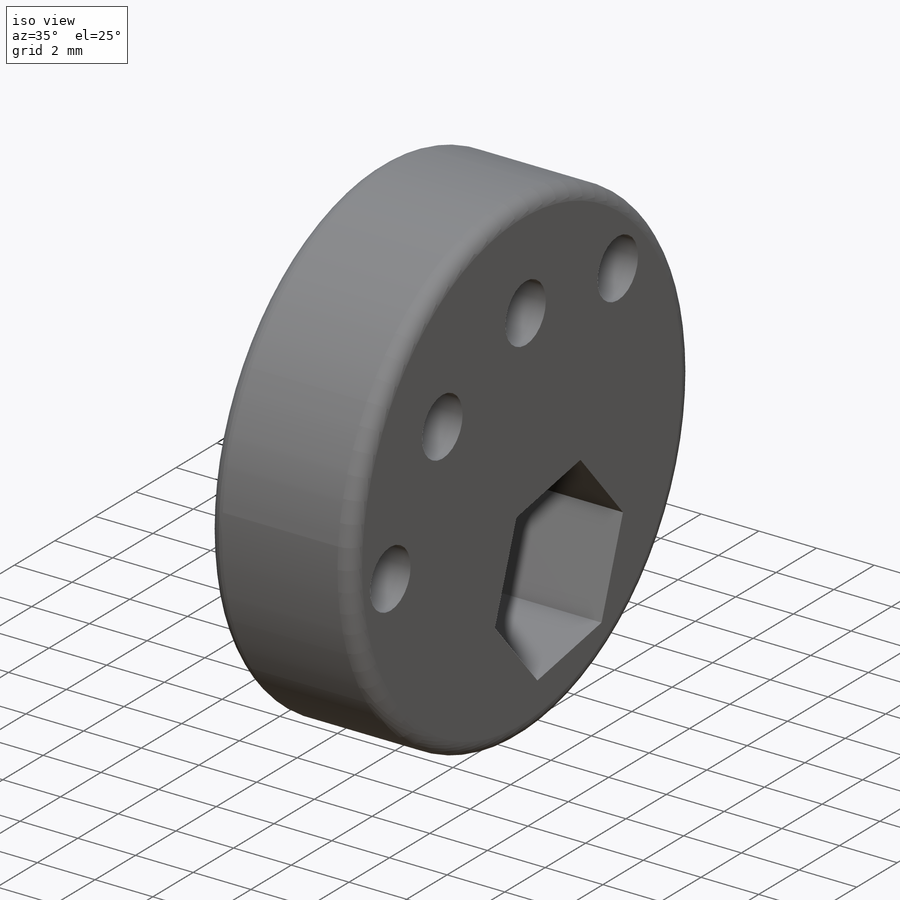
[diagram: iso view]
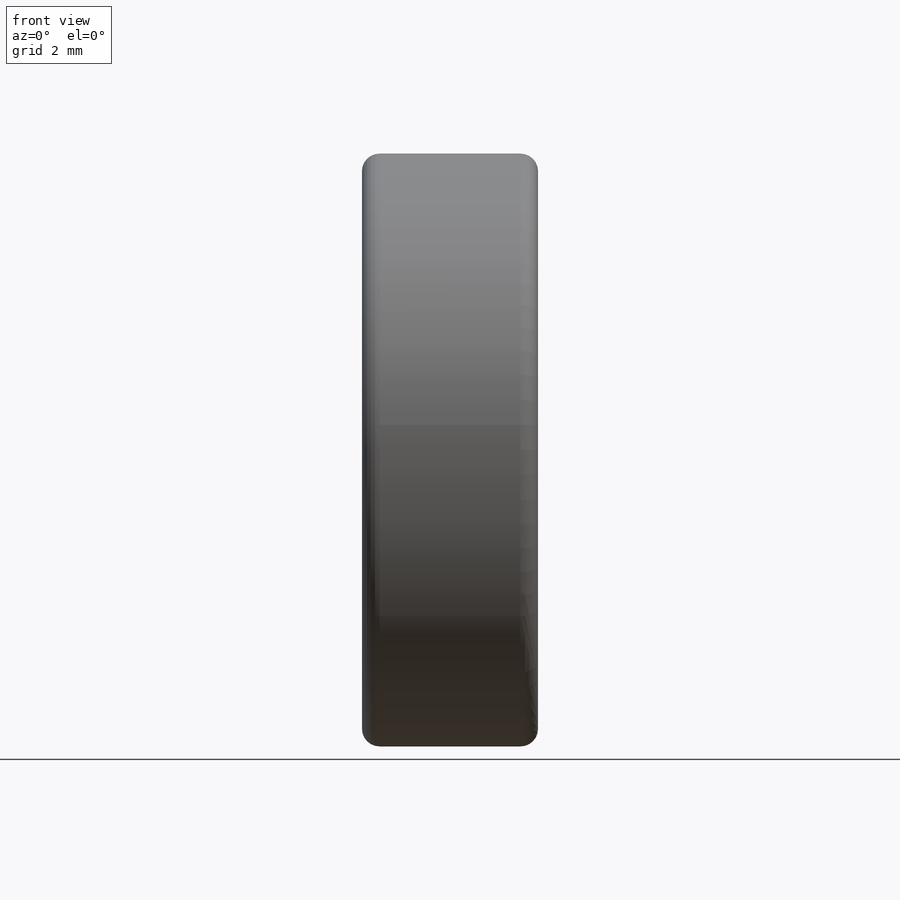
[diagram: front view]
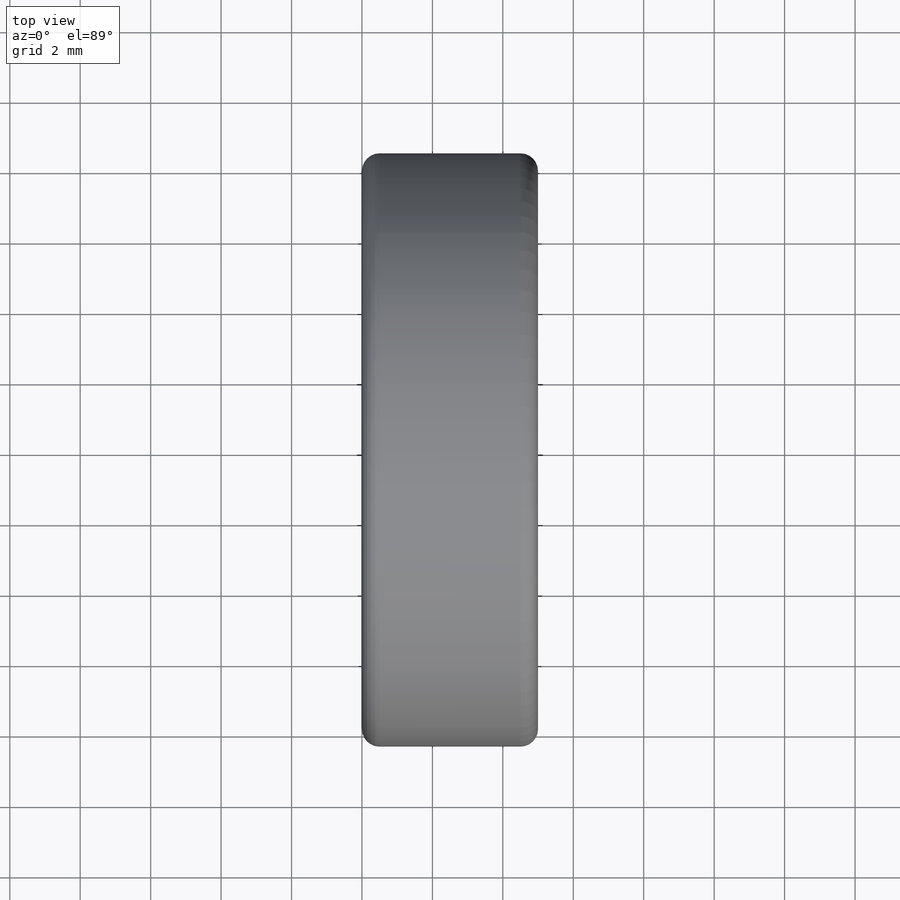
[diagram: top view]
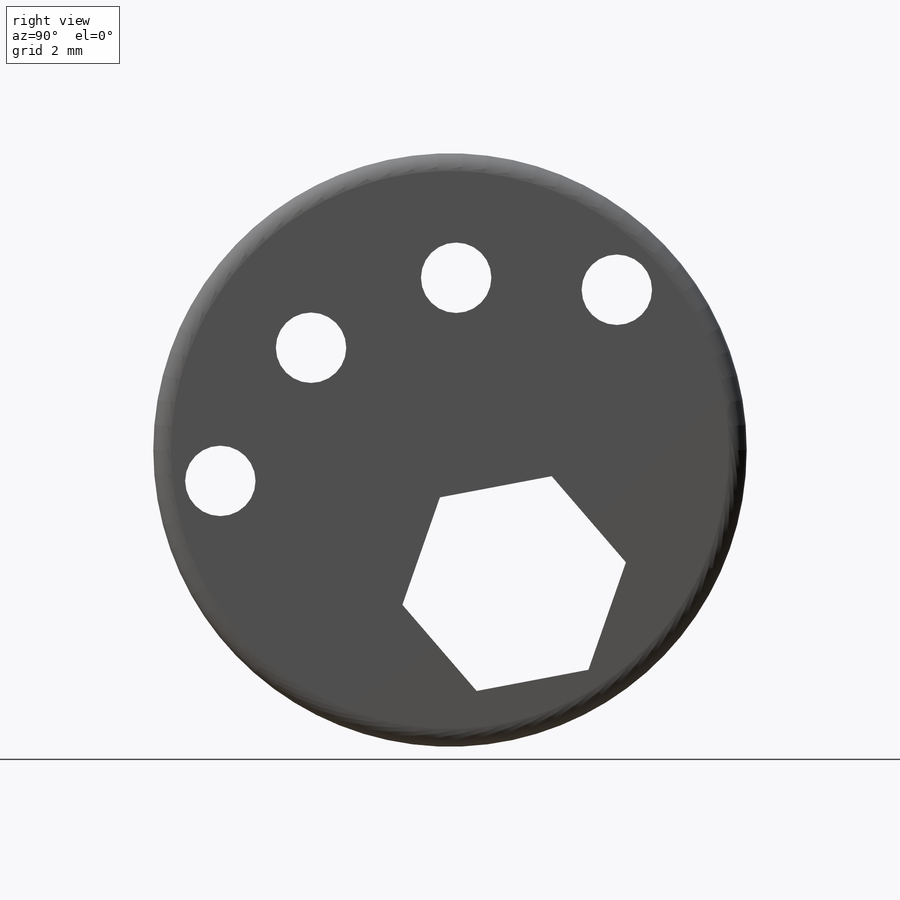
[diagram: right view]
SOLIDWORKS PART (.sldprt)
format: sldprt  version: not decoded by parser v0  size: 224,256 bytes
history: native  units: mm
features: plane x3, sketch x3, fillet x2, material x1, extrude x1, cut_extrude x1 (+9 scaffold rows collapsed)
feature tree (20):
  scaffold x9  (default folders/planes/origin — collapsed)
  material  "Material <nicht festgelegt>"
  plane  "Ebene vorne"
  plane  "Ebene oben"
  plane  "Ebene rechts"
  sketch  "Skizze1"  dims[D1=16.85mm]
  extrude  "Aufsatz-Linear austragen1"  Depth=5mm
  sketch  "Skizze2"  dims[c1.D7=2.0mm c1.D8=2.0mm c1.D9=2.0mm c1.D10=2.0mm c1.D1=3.23mm c1.D2=3.23mm c1.D3=3.23mm c1.D4=3.23mm c1.D5=3.23mm c1.D6=3.23mm c2.D2=~2.283955mm c3.D2=125.0deg c3.D4=1.3991mm c4.D4=125.0deg c5.D4=3.23mm c6.D4=125.0deg c6.D6=3.23mm c7.D6=110.0deg c7.D1=~0.319015mm c8.D1=110.0deg c9.D1=3.23mm c10.D1=110.0deg c11.D1=3.23mm c12.D1=120.0deg c12.D2=~3.791784mm c13.D2=120.0deg c13.D3=~3.214207mm c14.D3=120.0deg c14.D4=~2.156601mm c15.D4=120.0deg c15.D5=~1.582272mm c16.D5=120.0deg c16.D6=3.23mm c16.D7=3.23mm c16.D8=3.23mm c16.D9=3.23mm c16.D10=3.23mm c16.D11=3.23mm c16.D1=~2.668717mm c17.D1=120.0deg c17.D2=~2.910156mm c18.D2=120.0deg c18.D3=~1.40139mm c19.D3=120.0deg c19.D4=~3.239062mm c20.D4=120.0deg c21.D4=~2.668717mm c22.D4=120.0deg c22.D5=3.23mm c23.D5=120.0deg c23.D6=~1.40139mm c24.D6=120.0deg c24.D4=5.59mm c24.D5=~2.522209mm c25.D5=5.59deg c25.D6=~3.271967mm c26.D5=~3.284774mm c27.D5=5.59deg c28.D5=3.23mm c28.D6=~3.224778mm c28.D4=~2.721272mm c29.D6=~3.224778mm c29.D4=3.23mm c30.D6=~3.227048mm c31.D6=0.0deg]
  cut_extrude  "Schnitt-Linear austragen1"  [1 undecoded]
  fillet  "Verrundung5"  Radius=0.5mm
  fillet  "Verrundung6"  Radius=0.5mm
  sketch  "Bezug"
decode coverage: 5 of 7 modeling features carry decoded parameters
note: ~ marks probable driven/reference dimensions
note: 1 parameter value undecoded
note: suppression state not decoded; provenance and decode notes live in map.json
